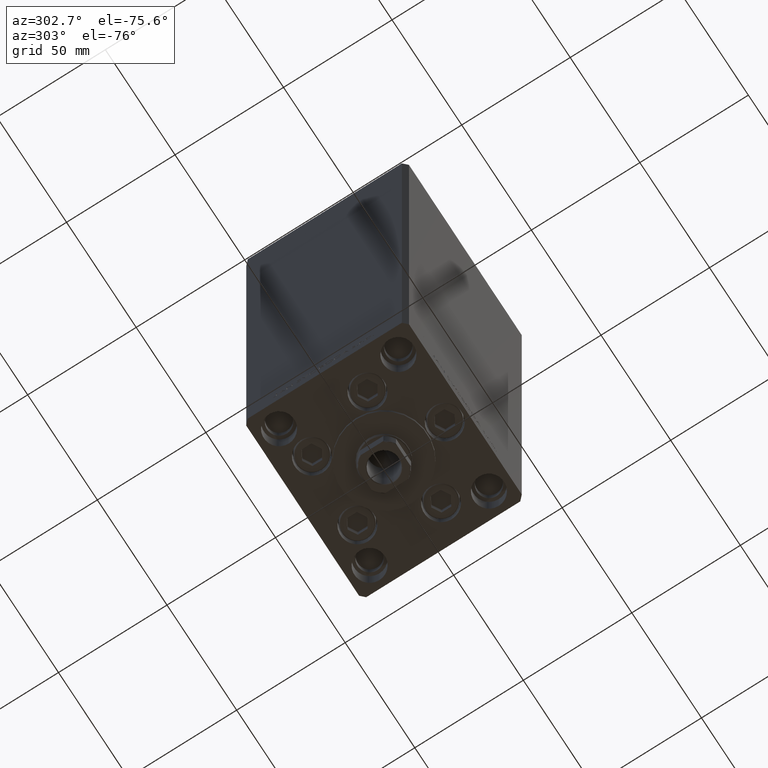
[diagram: clean part render]
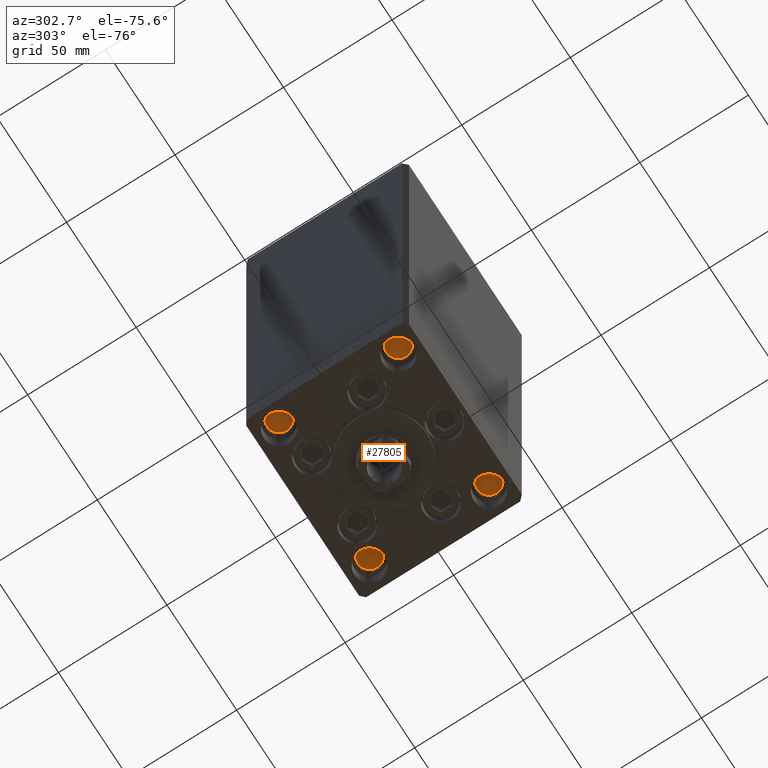
[diagram: same view with one face highlighted and labeled with its STEP entity id]
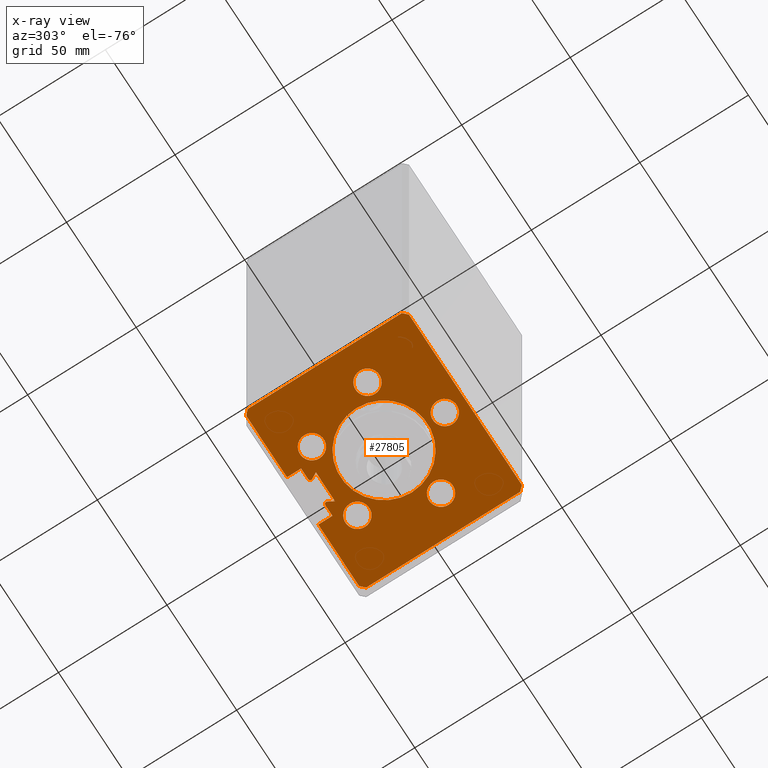
[diagram: x-ray of the same camera — body ghosted, the highlighted face saturated]
A machine part, auxiliary view. The second image highlights one B-rep face of the part: STEP entity #27805.
The next image is the same camera in x-ray: the body ghosted, the highlighted face saturated — about 0% of this face is hidden behind the body in this view.
In plain terms, the highlighted planar face has unit normal (0, 0, -1).
Its self-contained STEP definition (entity closure, byte-faithful):
#8 = ORIENTED_EDGE ( 'NONE', *, *, #47685, .T. ) ;
#141 = CARTESIAN_POINT ( 'NONE',  ( 42.50000000000000711, 35.50000000000001421, 0.000000000000000000 ) ) ;
#207 = CARTESIAN_POINT ( 'NONE',  ( -6.183333333333999704, 30.99999999999999289, 0.000000000000000000 ) ) ;
#244 = ORIENTED_EDGE ( 'NONE', *, *, #46671, .F. ) ;
#295 = CIRCLE ( 'NONE', #21583, 20.00000000000000000 ) ;
#348 = EDGE_CURVE ( 'NONE', #23051, #31018, #295, .T. ) ;
#395 = VECTOR ( 'NONE', #25987, 1000.000000000000114 ) ;
#504 = CARTESIAN_POINT ( 'NONE',  ( 40.50000000000000000, 37.50000000000000711, 0.000000000000000000 ) ) ;
#701 = VECTOR ( 'NONE', #27187, 1000.000000000000114 ) ;
#879 = CIRCLE ( 'NONE', #7968, 0.9333333333340015914 ) ;
#1189 = AXIS2_PLACEMENT_3D ( 'NONE', #8954, #1555, #46845 ) ;
#1210 = VECTOR ( 'NONE', #40256, 1000.000000000000000 ) ;
#1539 = ORIENTED_EDGE ( 'NONE', *, *, #41957, .F. ) ;
#1555 = DIRECTION ( 'NONE',  ( 0.000000000000000000, 0.000000000000000000, -1.000000000000000000 ) ) ;
#1606 = ORIENTED_EDGE ( 'NONE', *, *, #15935, .T. ) ;
#1753 = ORIENTED_EDGE ( 'NONE', *, *, #28383, .F. ) ;
#1858 = ORIENTED_EDGE ( 'NONE', *, *, #30181, .T. ) ;
#2011 = DIRECTION ( 'NONE',  ( -1.000000000000000000, 2.372271420139223331E-16, 0.000000000000000000 ) ) ;
#2019 = VECTOR ( 'NONE', #38238, 1000.000000000000000 ) ;
#2118 = CARTESIAN_POINT ( 'NONE',  ( 42.49999999999998579, -35.50000000000000711, 0.000000000000000000 ) ) ;
#2158 = CARTESIAN_POINT ( 'NONE',  ( -40.49999999999998579, -37.50000000000000711, 0.000000000000000000 ) ) ;
#2178 = ORIENTED_EDGE ( 'NONE', *, *, #42867, .F. ) ;
#2361 = DIRECTION ( 'NONE',  ( 1.000000000000000000, -0.000000000000000000, -0.000000000000000000 ) ) ;
#2582 = VERTEX_POINT ( 'NONE', #5946 ) ;
#2904 = CARTESIAN_POINT ( 'NONE',  ( -40.50000000000000000, 37.50000000000000711, 0.000000000000000000 ) ) ;
#3192 = DIRECTION ( 'NONE',  ( -0.000000000000000000, 0.000000000000000000, 1.000000000000000000 ) ) ;
#3283 = EDGE_CURVE ( 'NONE', #18100, #7452, #47561, .T. ) ;
#3312 = EDGE_CURVE ( 'NONE', #38577, #40639, #7420, .T. ) ;
#3338 = AXIS2_PLACEMENT_3D ( 'NONE', #9314, #24417, #42534 ) ;
#3452 = ORIENTED_EDGE ( 'NONE', *, *, #3312, .T. ) ;
#3550 = CIRCLE ( 'NONE', #1189, 5.500000000000001776 ) ;
#3872 = EDGE_CURVE ( 'NONE', #20885, #46962, #28024, .T. ) ;
#4119 = ORIENTED_EDGE ( 'NONE', *, *, #10492, .F. ) ;
#4208 = LINE ( 'NONE', #7671, #22736 ) ;
#4433 = AXIS2_PLACEMENT_3D ( 'NONE', #40819, #3192, #14059 ) ;
#4909 = EDGE_CURVE ( 'NONE', #2582, #10047, #39151, .T. ) ;
#4964 = VERTEX_POINT ( 'NONE', #6830 ) ;
#4986 = VERTEX_POINT ( 'NONE', #15973 ) ;
#5438 = CARTESIAN_POINT ( 'NONE',  ( -11.25000000000000000, 30.99999999999999289, 0.000000000000000000 ) ) ;
#5946 = CARTESIAN_POINT ( 'NONE',  ( 20.89865316429776598, -9.333333333333332149, 0.000000000000000000 ) ) ;
#6311 = EDGE_CURVE ( 'NONE', #45513, #47860, #26550, .T. ) ;
#6830 = CARTESIAN_POINT ( 'NONE',  ( -5.375042956467944499, 29.59999999999899245, 0.000000000000000000 ) ) ;
#7208 = EDGE_CURVE ( 'NONE', #38177, #16108, #39365, .T. ) ;
#7289 = FACE_BOUND ( 'NONE', #16040, .T. ) ;
#7370 = DIRECTION ( 'NONE',  ( -1.000000000000000000, 0.000000000000000000, 0.000000000000000000 ) ) ;
#7390 = ORIENTED_EDGE ( 'NONE', *, *, #41333, .F. ) ;
#7420 = LINE ( 'NONE', #22523, #395 ) ;
#7452 = VERTEX_POINT ( 'NONE', #22725 ) ;
#7671 = CARTESIAN_POINT ( 'NONE',  ( 40.50000000000000000, 37.50000000000000711, 0.000000000000000000 ) ) ;
#7720 = AXIS2_PLACEMENT_3D ( 'NONE', #10913, #33941, #30223 ) ;
#7968 = AXIS2_PLACEMENT_3D ( 'NONE', #32544, #47663, #13725 ) ;
#8299 = DIRECTION ( 'NONE',  ( -1.000000000000000000, 0.000000000000000000, 0.000000000000000000 ) ) ;
#8954 = CARTESIAN_POINT ( 'NONE',  ( -26.39865316429776598, -9.333333333333339255, 0.000000000000000000 ) ) ;
#9057 = LINE ( 'NONE', #13740, #1210 ) ;
#9062 = CARTESIAN_POINT ( 'NONE',  ( 3.429011037612589276E-15, -28.00000000000000000, 0.000000000000000000 ) ) ;
#9205 = EDGE_LOOP ( 'NONE', ( #42323, #4119 ) ) ;
#9314 = CARTESIAN_POINT ( 'NONE',  ( -6.183333333333999704, 30.06666666666599141, 0.000000000000000000 ) ) ;
#9407 = CARTESIAN_POINT ( 'NONE',  ( 11.25000000000000000, 30.99999999999999289, 0.000000000000000000 ) ) ;
#9910 = CARTESIAN_POINT ( 'NONE',  ( -11.25000000000000000, 37.50000000000000000, 0.000000000000000000 ) ) ;
#10047 = VERTEX_POINT ( 'NONE', #30151 ) ;
#10492 = EDGE_CURVE ( 'NONE', #10047, #2582, #45662, .T. ) ;
#10596 = EDGE_CURVE ( 'NONE', #46962, #20885, #42550, .T. ) ;
#10913 = CARTESIAN_POINT ( 'NONE',  ( 3.429011037612589276E-15, -28.00000000000000000, 0.000000000000000000 ) ) ;
#11005 = FACE_BOUND ( 'NONE', #36302, .T. ) ;
#11221 = EDGE_CURVE ( 'NONE', #18100, #4986, #4208, .T. ) ;
#11326 = EDGE_LOOP ( 'NONE', ( #1753, #15735 ) ) ;
#11447 = DIRECTION ( 'NONE',  ( -1.000000000000000000, 0.000000000000000000, 0.000000000000000000 ) ) ;
#11469 = AXIS2_PLACEMENT_3D ( 'NONE', #16749, #31836, #21433 ) ;
#11720 = VERTEX_POINT ( 'NONE', #13244 ) ;
#12565 = DIRECTION ( 'NONE',  ( 0.000000000000000000, 0.000000000000000000, -1.000000000000000000 ) ) ;
#12590 = CARTESIAN_POINT ( 'NONE',  ( 6.183333333333999704, 30.99999999999999289, 0.000000000000000000 ) ) ;
#13244 = CARTESIAN_POINT ( 'NONE',  ( 5.375042956467943611, 29.59999999999899245, 0.000000000000000000 ) ) ;
#13388 = LINE ( 'NONE', #43623, #25679 ) ;
#13474 = CARTESIAN_POINT ( 'NONE',  ( -6.183333333333999704, 30.99999999999999289, 0.000000000000000000 ) ) ;
#13709 = LINE ( 'NONE', #24614, #46321 ) ;
#13719 = LINE ( 'NONE', #13474, #33500 ) ;
#13725 = DIRECTION ( 'NONE',  ( 1.000000000000000000, 0.000000000000000000, 0.000000000000000000 ) ) ;
#13740 = CARTESIAN_POINT ( 'NONE',  ( -11.25000000000000000, 30.99999999999999289, 0.000000000000000000 ) ) ;
#14059 = DIRECTION ( 'NONE',  ( 1.000000000000000000, 0.000000000000000000, 0.000000000000000000 ) ) ;
#14240 = CARTESIAN_POINT ( 'NONE',  ( 40.49999999999998579, -37.50000000000000711, 0.000000000000000000 ) ) ;
#14705 = FACE_BOUND ( 'NONE', #35763, .T. ) ;
#14754 = LINE ( 'NONE', #37309, #27317 ) ;
#14963 = EDGE_CURVE ( 'NONE', #47860, #45513, #22729, .T. ) ;
#15002 = CARTESIAN_POINT ( 'NONE',  ( 10.82291334290542295, 22.75000000000000000, 0.000000000000000000 ) ) ;
#15205 = CIRCLE ( 'NONE', #3338, 0.9333333333340015914 ) ;
#15236 = DIRECTION ( 'NONE',  ( 0.000000000000000000, 0.000000000000000000, -1.000000000000000000 ) ) ;
#15602 = VERTEX_POINT ( 'NONE', #30788 ) ;
#15735 = ORIENTED_EDGE ( 'NONE', *, *, #21725, .F. ) ;
#15834 = DIRECTION ( 'NONE',  ( 0.7071067811865500152, -0.7071067811865451302, 0.000000000000000000 ) ) ;
#15935 = EDGE_CURVE ( 'NONE', #28367, #31071, #47259, .T. ) ;
#15973 = CARTESIAN_POINT ( 'NONE',  ( 42.50000000000000711, 35.50000000000001421, 0.000000000000000000 ) ) ;
#16010 = CARTESIAN_POINT ( 'NONE',  ( 16.32291334290542295, 22.75000000000000000, 0.000000000000000000 ) ) ;
#16040 = EDGE_LOOP ( 'NONE', ( #8, #25884 ) ) ;
#16108 = VERTEX_POINT ( 'NONE', #9407 ) ;
#16475 = EDGE_CURVE ( 'NONE', #42850, #33387, #18047, .T. ) ;
#16483 = CARTESIAN_POINT ( 'NONE',  ( -26.39865316429776598, -9.333333333333339255, 0.000000000000000000 ) ) ;
#16749 = CARTESIAN_POINT ( 'NONE',  ( 26.39865316429776598, -9.333333333333332149, 0.000000000000000000 ) ) ;
#17053 = CARTESIAN_POINT ( 'NONE',  ( 6.183333333333999704, 30.99999999999999289, 0.000000000000000000 ) ) ;
#17114 = VERTEX_POINT ( 'NONE', #23061 ) ;
#17237 = DIRECTION ( 'NONE',  ( 1.000000000000000000, 0.000000000000000000, 0.000000000000000000 ) ) ;
#17527 = CIRCLE ( 'NONE', #45239, 5.500000000000001776 ) ;
#17802 = VECTOR ( 'NONE', #17237, 1000.000000000000000 ) ;
#18047 = LINE ( 'NONE', #33153, #701 ) ;
#18100 = VERTEX_POINT ( 'NONE', #504 ) ;
#18276 = AXIS2_PLACEMENT_3D ( 'NONE', #16010, #46706, #27387 ) ;
#18356 = VECTOR ( 'NONE', #38977, 1000.000000000000114 ) ;
#18471 = DIRECTION ( 'NONE',  ( 0.7071067811865474617, -0.7071067811865474617, 0.000000000000000000 ) ) ;
#18659 = ORIENTED_EDGE ( 'NONE', *, *, #3872, .F. ) ;
#18674 = CARTESIAN_POINT ( 'NONE',  ( 0.000000000000000000, 0.000000000000000000, 0.000000000000000000 ) ) ;
#18702 = EDGE_CURVE ( 'NONE', #4986, #38577, #34029, .T. ) ;
#18872 = CARTESIAN_POINT ( 'NONE',  ( 16.32291334290542295, 22.75000000000000000, 0.000000000000000000 ) ) ;
#19028 = CARTESIAN_POINT ( 'NONE',  ( -16.32291334290543006, 22.74999999999999645, 0.000000000000000000 ) ) ;
#19115 = ORIENTED_EDGE ( 'NONE', *, *, #25117, .T. ) ;
#19200 = ORIENTED_EDGE ( 'NONE', *, *, #41274, .F. ) ;
#19343 = VECTOR ( 'NONE', #2011, 1000.000000000000000 ) ;
#19500 = CARTESIAN_POINT ( 'NONE',  ( -10.82291334290543183, 22.74999999999999645, 0.000000000000000000 ) ) ;
#19953 = CARTESIAN_POINT ( 'NONE',  ( -20.00000000000000000, 0.000000000000000000, 0.000000000000000000 ) ) ;
#20766 = EDGE_CURVE ( 'NONE', #23940, #41527, #9057, .T. ) ;
#20884 = EDGE_CURVE ( 'NONE', #15602, #11720, #38258, .T. ) ;
#20885 = VERTEX_POINT ( 'NONE', #27085 ) ;
#21002 = DIRECTION ( 'NONE',  ( 1.000000000000000000, 0.000000000000000000, 0.000000000000000000 ) ) ;
#21080 = DIRECTION ( 'NONE',  ( -0.000000000000000000, -0.000000000000000000, -1.000000000000000000 ) ) ;
#21265 = VECTOR ( 'NONE', #30316, 1000.000000000000000 ) ;
#21433 = DIRECTION ( 'NONE',  ( -1.000000000000000000, 0.000000000000000000, 0.000000000000000000 ) ) ;
#21583 = AXIS2_PLACEMENT_3D ( 'NONE', #48634, #41214, #41717 ) ;
#21725 = EDGE_CURVE ( 'NONE', #32755, #35641, #33883, .T. ) ;
#22084 = LINE ( 'NONE', #40667, #46640 ) ;
#22335 = DIRECTION ( 'NONE',  ( 0.000000000000000000, 0.000000000000000000, -1.000000000000000000 ) ) ;
#22523 = CARTESIAN_POINT ( 'NONE',  ( 42.49999999999998579, -35.50000000000000711, 0.000000000000000000 ) ) ;
#22663 = ORIENTED_EDGE ( 'NONE', *, *, #10596, .F. ) ;
#22725 = CARTESIAN_POINT ( 'NONE',  ( 11.25000000000000000, 37.50000000000000000, 0.000000000000000000 ) ) ;
#22729 = CIRCLE ( 'NONE', #27455, 5.500000000000001776 ) ;
#22736 = VECTOR ( 'NONE', #15834, 1000.000000000000114 ) ;
#22816 = AXIS2_PLACEMENT_3D ( 'NONE', #18872, #22335, #11447 ) ;
#22893 = CARTESIAN_POINT ( 'NONE',  ( 6.876153656360465938, 26.99999999999986855, 0.000000000000000000 ) ) ;
#22961 = DIRECTION ( 'NONE',  ( 0.000000000000000000, 0.000000000000000000, -1.000000000000000000 ) ) ;
#23051 = VERTEX_POINT ( 'NONE', #36169 ) ;
#23061 = CARTESIAN_POINT ( 'NONE',  ( -20.89865316429776598, -9.333333333333339255, 0.000000000000000000 ) ) ;
#23696 = LINE ( 'NONE', #26933, #46275 ) ;
#23940 = VERTEX_POINT ( 'NONE', #26256 ) ;
#24417 = DIRECTION ( 'NONE',  ( -0.000000000000000000, -0.000000000000000000, -1.000000000000000000 ) ) ;
#24614 = CARTESIAN_POINT ( 'NONE',  ( 6.876153656360465938, 26.99999999999986855, 0.000000000000000000 ) ) ;
#24847 = ORIENTED_EDGE ( 'NONE', *, *, #18702, .T. ) ;
#24855 = DIRECTION ( 'NONE',  ( 1.000000000000000000, -0.000000000000000000, -0.000000000000000000 ) ) ;
#25051 = AXIS2_PLACEMENT_3D ( 'NONE', #42240, #15236, #8299 ) ;
#25117 = EDGE_CURVE ( 'NONE', #16108, #7452, #22084, .T. ) ;
#25265 = DIRECTION ( 'NONE',  ( 2.931927001650941360E-16, -1.000000000000000000, 0.000000000000000000 ) ) ;
#25383 = ORIENTED_EDGE ( 'NONE', *, *, #14963, .F. ) ;
#25679 = VECTOR ( 'NONE', #25265, 1000.000000000000000 ) ;
#25884 = ORIENTED_EDGE ( 'NONE', *, *, #348, .T. ) ;
#25987 = DIRECTION ( 'NONE',  ( -0.7071067811865474617, -0.7071067811865474617, 0.000000000000000000 ) ) ;
#26098 = FACE_BOUND ( 'NONE', #45157, .T. ) ;
#26128 = ORIENTED_EDGE ( 'NONE', *, *, #3283, .F. ) ;
#26256 = CARTESIAN_POINT ( 'NONE',  ( -11.25000000000000000, 37.50000000000000000, 0.000000000000000000 ) ) ;
#26550 = CIRCLE ( 'NONE', #32863, 5.500000000000001776 ) ;
#26829 = LINE ( 'NONE', #41956, #2019 ) ;
#26933 = CARTESIAN_POINT ( 'NONE',  ( -6.876153656360465938, 26.99999999999986855, 0.000000000000000000 ) ) ;
#27085 = CARTESIAN_POINT ( 'NONE',  ( 5.500000000000003553, -28.00000000000000000, 0.000000000000000000 ) ) ;
#27187 = DIRECTION ( 'NONE',  ( -0.7071067811865500152, -0.7071067811865451302, 0.000000000000000000 ) ) ;
#27317 = VECTOR ( 'NONE', #18471, 1000.000000000000114 ) ;
#27387 = DIRECTION ( 'NONE',  ( -1.000000000000000000, 0.000000000000000000, 0.000000000000000000 ) ) ;
#27455 = AXIS2_PLACEMENT_3D ( 'NONE', #19028, #12565, #34374 ) ;
#27805 = ADVANCED_FACE ( 'NONE', ( #14705, #29816, #44934, #11005, #26098, #41221, #7289 ), #37505, .T. ) ;
#28024 = CIRCLE ( 'NONE', #34369, 5.500000000000000000 ) ;
#28077 = VERTEX_POINT ( 'NONE', #36954 ) ;
#28157 = ORIENTED_EDGE ( 'NONE', *, *, #43040, .T. ) ;
#28329 = CARTESIAN_POINT ( 'NONE',  ( -21.82291334290543361, 22.74999999999999645, 0.000000000000000000 ) ) ;
#28367 = VERTEX_POINT ( 'NONE', #207 ) ;
#28383 = EDGE_CURVE ( 'NONE', #35641, #32755, #28561, .T. ) ;
#28561 = CIRCLE ( 'NONE', #18276, 5.500000000000001776 ) ;
#29493 = VERTEX_POINT ( 'NONE', #40442 ) ;
#29746 = CARTESIAN_POINT ( 'NONE',  ( -6.183333333333999704, 30.06666666666599141, 0.000000000000000000 ) ) ;
#29816 = FACE_BOUND ( 'NONE', #11326, .T. ) ;
#30061 = EDGE_CURVE ( 'NONE', #17114, #29493, #17527, .T. ) ;
#30064 = DIRECTION ( 'NONE',  ( -1.000000000000000000, 0.000000000000000000, -0.000000000000000000 ) ) ;
#30151 = CARTESIAN_POINT ( 'NONE',  ( 31.89865316429776954, -9.333333333333332149, 0.000000000000000000 ) ) ;
#30181 = EDGE_CURVE ( 'NONE', #11720, #38177, #879, .T. ) ;
#30223 = DIRECTION ( 'NONE',  ( -1.000000000000000000, 0.000000000000000000, 0.000000000000000000 ) ) ;
#30316 = DIRECTION ( 'NONE',  ( -2.931927001650941360E-16, -1.000000000000000000, 0.000000000000000000 ) ) ;
#30788 = CARTESIAN_POINT ( 'NONE',  ( 6.876153656360465938, 26.99999999999986855, 0.000000000000000000 ) ) ;
#31018 = VERTEX_POINT ( 'NONE', #19953 ) ;
#31071 = VERTEX_POINT ( 'NONE', #42032 ) ;
#31277 = VECTOR ( 'NONE', #21002, 1000.000000000000000 ) ;
#31352 = CARTESIAN_POINT ( 'NONE',  ( -42.50000000000000711, 35.50000000000001421, 0.000000000000000000 ) ) ;
#31577 = DIRECTION ( 'NONE',  ( 0.000000000000000000, 0.000000000000000000, -1.000000000000000000 ) ) ;
#31827 = DIRECTION ( 'NONE',  ( -1.000000000000000000, 0.000000000000000000, 0.000000000000000000 ) ) ;
#31836 = DIRECTION ( 'NONE',  ( 0.000000000000000000, 0.000000000000000000, -1.000000000000000000 ) ) ;
#32334 = VERTEX_POINT ( 'NONE', #35916 ) ;
#32544 = CARTESIAN_POINT ( 'NONE',  ( 6.183333333333999704, 30.06666666666599141, 0.000000000000000000 ) ) ;
#32755 = VERTEX_POINT ( 'NONE', #44822 ) ;
#32863 = AXIS2_PLACEMENT_3D ( 'NONE', #42044, #22961, #7370 ) ;
#33153 = CARTESIAN_POINT ( 'NONE',  ( -40.50000000000000000, 37.50000000000000711, 0.000000000000000000 ) ) ;
#33387 = VERTEX_POINT ( 'NONE', #31352 ) ;
#33500 = VECTOR ( 'NONE', #2361, 1000.000000000000000 ) ;
#33776 = DIRECTION ( 'NONE',  ( 0.000000000000000000, 0.000000000000000000, -1.000000000000000000 ) ) ;
#33883 = CIRCLE ( 'NONE', #22816, 5.500000000000001776 ) ;
#33941 = DIRECTION ( 'NONE',  ( 0.000000000000000000, 0.000000000000000000, -1.000000000000000000 ) ) ;
#34029 = LINE ( 'NONE', #141, #21265 ) ;
#34121 = DIRECTION ( 'NONE',  ( -0.5000000000000003331, -0.8660254037844383745, -0.000000000000000000 ) ) ;
#34138 = EDGE_CURVE ( 'NONE', #31071, #4964, #15205, .T. ) ;
#34369 = AXIS2_PLACEMENT_3D ( 'NONE', #9062, #43241, #31827 ) ;
#34374 = DIRECTION ( 'NONE',  ( -1.000000000000000000, 0.000000000000000000, 0.000000000000000000 ) ) ;
#34495 = EDGE_LOOP ( 'NONE', ( #47781, #39244, #1606, #35026, #42639, #28157, #40011, #1858, #35097, #19115, #26128, #47476, #24847, #3452, #1539, #2178, #7390, #45163, #244 ) ) ;
#35026 = ORIENTED_EDGE ( 'NONE', *, *, #34138, .T. ) ;
#35097 = ORIENTED_EDGE ( 'NONE', *, *, #7208, .T. ) ;
#35334 = CARTESIAN_POINT ( 'NONE',  ( -6.876153656360465938, 26.99999999999986855, 0.000000000000000000 ) ) ;
#35371 = VERTEX_POINT ( 'NONE', #35334 ) ;
#35641 = VERTEX_POINT ( 'NONE', #15002 ) ;
#35763 = EDGE_LOOP ( 'NONE', ( #35800, #25383 ) ) ;
#35800 = ORIENTED_EDGE ( 'NONE', *, *, #6311, .F. ) ;
#35916 = CARTESIAN_POINT ( 'NONE',  ( -40.49999999999998579, -37.50000000000000711, 0.000000000000000000 ) ) ;
#36169 = CARTESIAN_POINT ( 'NONE',  ( 20.00000000000000000, 2.449293598294706513E-15, 0.000000000000000000 ) ) ;
#36195 = DIRECTION ( 'NONE',  ( 1.000000000000000000, 0.000000000000000000, 0.000000000000000000 ) ) ;
#36302 = EDGE_LOOP ( 'NONE', ( #22663, #18659 ) ) ;
#36954 = CARTESIAN_POINT ( 'NONE',  ( -42.49999999999998579, -35.50000000000000711, 0.000000000000000000 ) ) ;
#37309 = CARTESIAN_POINT ( 'NONE',  ( -42.49999999999998579, -35.50000000000000711, 0.000000000000000000 ) ) ;
#37505 = PLANE ( 'NONE',  #42022 ) ;
#38177 = VERTEX_POINT ( 'NONE', #12590 ) ;
#38238 = DIRECTION ( 'NONE',  ( -1.000000000000000000, 2.372271420139223331E-16, 0.000000000000000000 ) ) ;
#38258 = LINE ( 'NONE', #22893, #18356 ) ;
#38577 = VERTEX_POINT ( 'NONE', #2118 ) ;
#38579 = EDGE_CURVE ( 'NONE', #41527, #28367, #13719, .T. ) ;
#38977 = DIRECTION ( 'NONE',  ( -0.5000000000000003331, 0.8660254037844383745, 0.000000000000000000 ) ) ;
#39151 = CIRCLE ( 'NONE', #11469, 5.500000000000001776 ) ;
#39244 = ORIENTED_EDGE ( 'NONE', *, *, #38579, .T. ) ;
#39365 = LINE ( 'NONE', #17053, #31277 ) ;
#39779 = LINE ( 'NONE', #2158, #17802 ) ;
#40011 = ORIENTED_EDGE ( 'NONE', *, *, #20884, .T. ) ;
#40256 = DIRECTION ( 'NONE',  ( -0.000000000000000000, -1.000000000000000000, -0.000000000000000000 ) ) ;
#40442 = CARTESIAN_POINT ( 'NONE',  ( -31.89865316429776954, -9.333333333333339255, 0.000000000000000000 ) ) ;
#40639 = VERTEX_POINT ( 'NONE', #14240 ) ;
#40667 = CARTESIAN_POINT ( 'NONE',  ( 11.25000000000000000, 30.99999999999999289, 0.000000000000000000 ) ) ;
#40819 = CARTESIAN_POINT ( 'NONE',  ( 0.000000000000000000, 0.000000000000000000, 0.000000000000000000 ) ) ;
#41214 = DIRECTION ( 'NONE',  ( -0.000000000000000000, 0.000000000000000000, 1.000000000000000000 ) ) ;
#41221 = FACE_OUTER_BOUND ( 'NONE', #34495, .T. ) ;
#41274 = EDGE_CURVE ( 'NONE', #29493, #17114, #3550, .T. ) ;
#41333 = EDGE_CURVE ( 'NONE', #33387, #28077, #13388, .T. ) ;
#41527 = VERTEX_POINT ( 'NONE', #5438 ) ;
#41717 = DIRECTION ( 'NONE',  ( 1.000000000000000000, 0.000000000000000000, 0.000000000000000000 ) ) ;
#41830 = EDGE_CURVE ( 'NONE', #4964, #35371, #23696, .T. ) ;
#41956 = CARTESIAN_POINT ( 'NONE',  ( -11.25000000000000000, 37.50000000000000000, 0.000000000000000000 ) ) ;
#41957 = EDGE_CURVE ( 'NONE', #32334, #40639, #39779, .T. ) ;
#42022 = AXIS2_PLACEMENT_3D ( 'NONE', #18674, #33776, #30064 ) ;
#42032 = CARTESIAN_POINT ( 'NONE',  ( -5.249999999999997335, 30.06666666666599141, 0.000000000000000000 ) ) ;
#42044 = CARTESIAN_POINT ( 'NONE',  ( -16.32291334290543006, 22.74999999999999645, 0.000000000000000000 ) ) ;
#42240 = CARTESIAN_POINT ( 'NONE',  ( 26.39865316429776598, -9.333333333333332149, 0.000000000000000000 ) ) ;
#42323 = ORIENTED_EDGE ( 'NONE', *, *, #4909, .F. ) ;
#42534 = DIRECTION ( 'NONE',  ( 1.000000000000000000, 0.000000000000000000, 0.000000000000000000 ) ) ;
#42550 = CIRCLE ( 'NONE', #7720, 5.500000000000000000 ) ;
#42639 = ORIENTED_EDGE ( 'NONE', *, *, #41830, .T. ) ;
#42850 = VERTEX_POINT ( 'NONE', #2904 ) ;
#42867 = EDGE_CURVE ( 'NONE', #28077, #32334, #14754, .T. ) ;
#43040 = EDGE_CURVE ( 'NONE', #35371, #15602, #13709, .T. ) ;
#43241 = DIRECTION ( 'NONE',  ( 0.000000000000000000, 0.000000000000000000, -1.000000000000000000 ) ) ;
#43623 = CARTESIAN_POINT ( 'NONE',  ( -42.50000000000000711, 35.50000000000001421, 0.000000000000000000 ) ) ;
#44143 = DIRECTION ( 'NONE',  ( 0.000000000000000000, 1.000000000000000000, 0.000000000000000000 ) ) ;
#44188 = ORIENTED_EDGE ( 'NONE', *, *, #30061, .F. ) ;
#44822 = CARTESIAN_POINT ( 'NONE',  ( 21.82291334290542650, 22.75000000000000000, 0.000000000000000000 ) ) ;
#44899 = AXIS2_PLACEMENT_3D ( 'NONE', #29746, #21080, #36195 ) ;
#44934 = FACE_BOUND ( 'NONE', #9205, .T. ) ;
#45157 = EDGE_LOOP ( 'NONE', ( #19200, #44188 ) ) ;
#45163 = ORIENTED_EDGE ( 'NONE', *, *, #16475, .F. ) ;
#45239 = AXIS2_PLACEMENT_3D ( 'NONE', #16483, #31577, #47914 ) ;
#45513 = VERTEX_POINT ( 'NONE', #28329 ) ;
#45662 = CIRCLE ( 'NONE', #25051, 5.500000000000001776 ) ;
#46275 = VECTOR ( 'NONE', #34121, 1000.000000000000114 ) ;
#46321 = VECTOR ( 'NONE', #24855, 1000.000000000000000 ) ;
#46640 = VECTOR ( 'NONE', #44143, 1000.000000000000000 ) ;
#46671 = EDGE_CURVE ( 'NONE', #23940, #42850, #26829, .T. ) ;
#46706 = DIRECTION ( 'NONE',  ( 0.000000000000000000, 0.000000000000000000, -1.000000000000000000 ) ) ;
#46845 = DIRECTION ( 'NONE',  ( -1.000000000000000000, 0.000000000000000000, 0.000000000000000000 ) ) ;
#46962 = VERTEX_POINT ( 'NONE', #48573 ) ;
#47259 = CIRCLE ( 'NONE', #44899, 0.9333333333340015914 ) ;
#47476 = ORIENTED_EDGE ( 'NONE', *, *, #11221, .T. ) ;
#47561 = LINE ( 'NONE', #9910, #19343 ) ;
#47663 = DIRECTION ( 'NONE',  ( -0.000000000000000000, -0.000000000000000000, -1.000000000000000000 ) ) ;
#47685 = EDGE_CURVE ( 'NONE', #31018, #23051, #47927, .T. ) ;
#47781 = ORIENTED_EDGE ( 'NONE', *, *, #20766, .T. ) ;
#47860 = VERTEX_POINT ( 'NONE', #19500 ) ;
#47914 = DIRECTION ( 'NONE',  ( -1.000000000000000000, 0.000000000000000000, 0.000000000000000000 ) ) ;
#47927 = CIRCLE ( 'NONE', #4433, 20.00000000000000000 ) ;
#48573 = CARTESIAN_POINT ( 'NONE',  ( -5.499999999999996447, -28.00000000000000000, 0.000000000000000000 ) ) ;
#48634 = CARTESIAN_POINT ( 'NONE',  ( 0.000000000000000000, 0.000000000000000000, 0.000000000000000000 ) ) ;